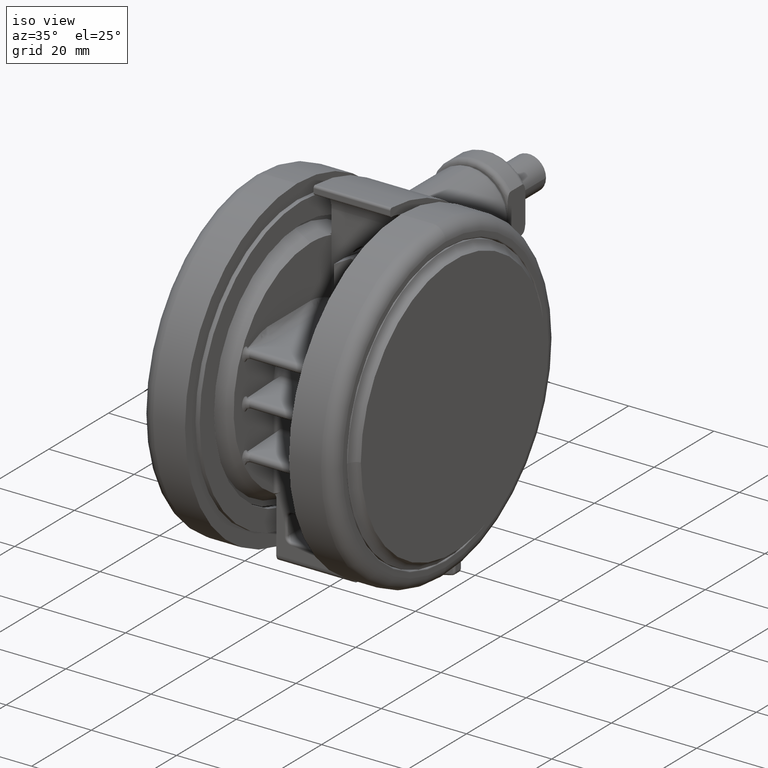
[diagram: clean part render]
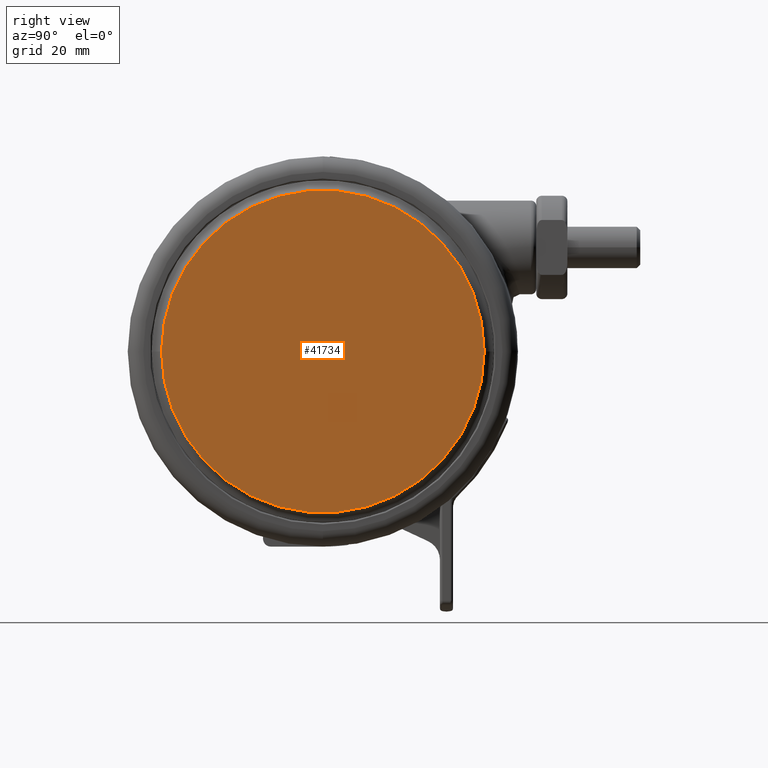
[diagram: tour spotlight — one face highlighted and labeled with its STEP entity id]
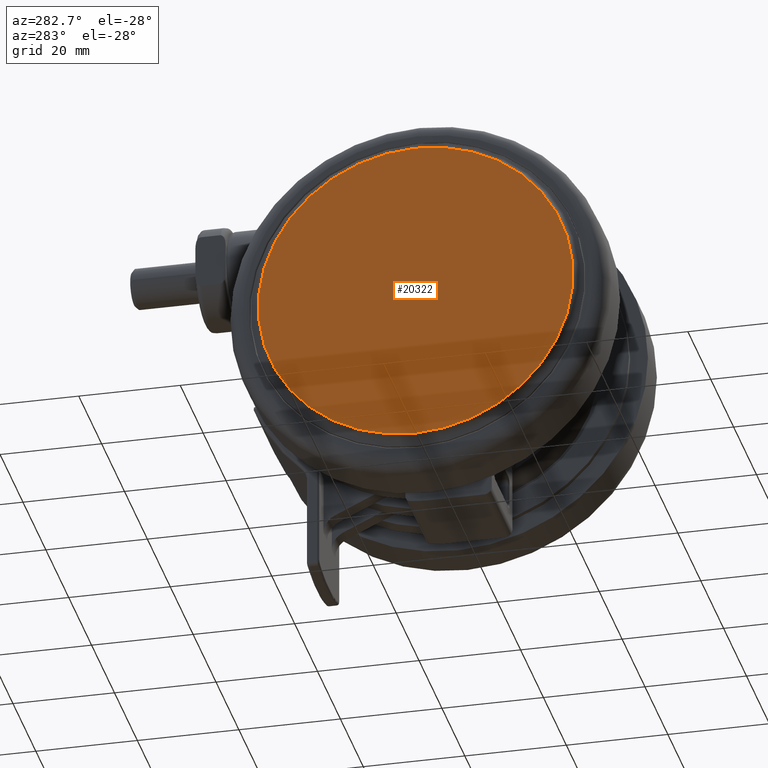
[diagram: tour spotlight — one face highlighted and labeled with its STEP entity id]
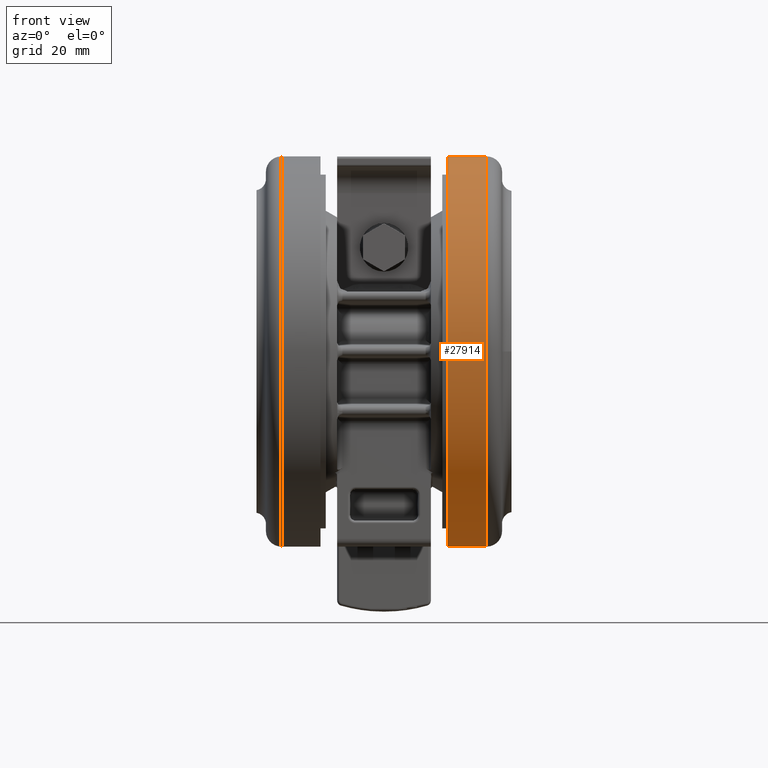
[diagram: tour spotlight — one face highlighted and labeled with its STEP entity id]
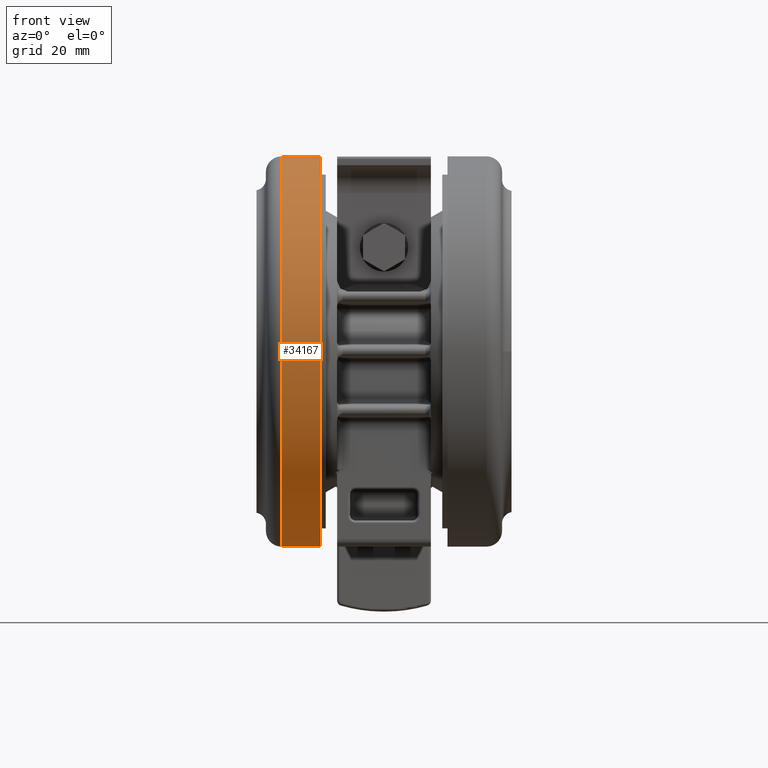
[diagram: tour spotlight — one face highlighted and labeled with its STEP entity id]
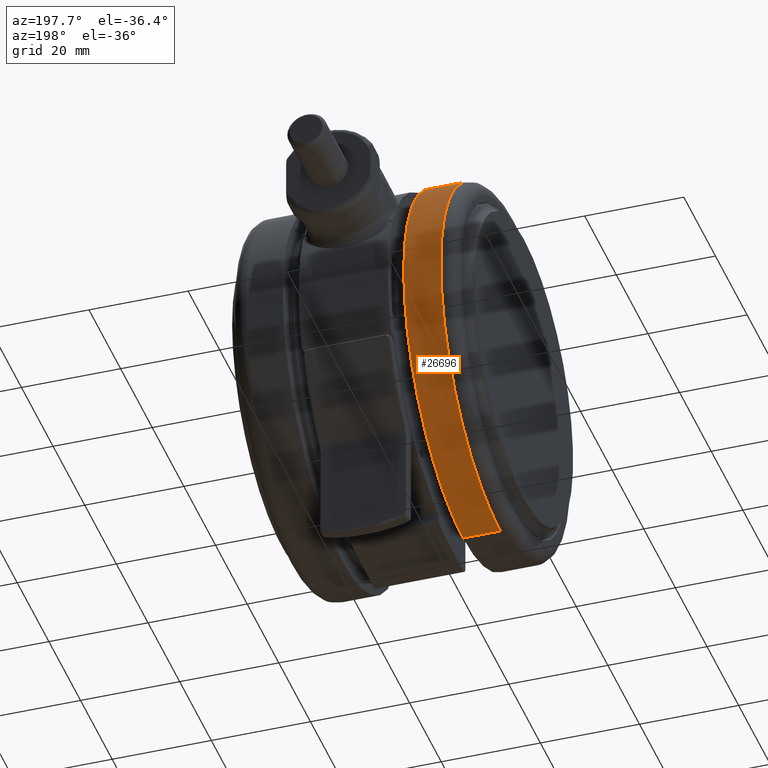
[diagram: tour spotlight — one face highlighted and labeled with its STEP entity id]
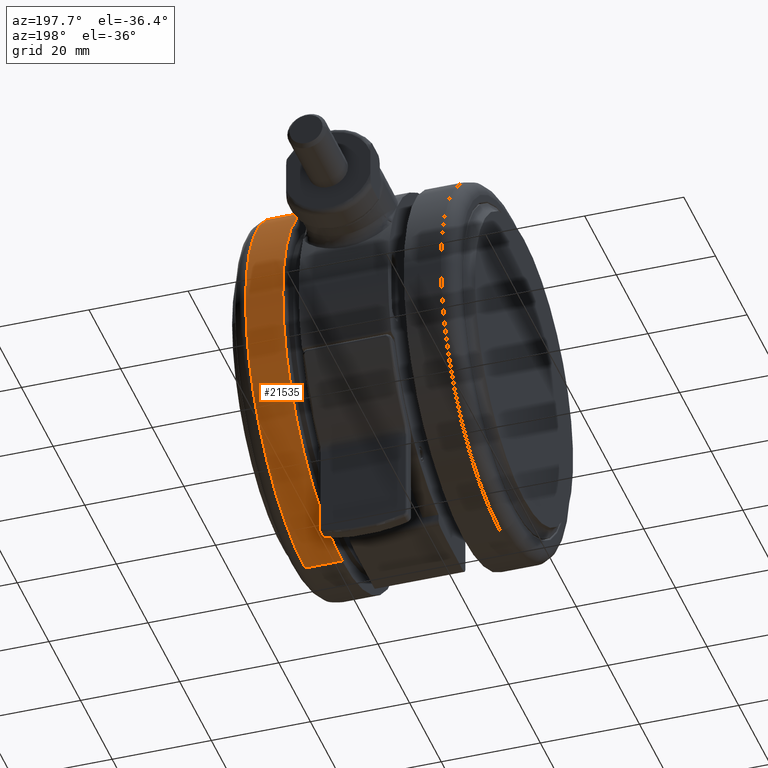
[diagram: tour spotlight — one face highlighted and labeled with its STEP entity id]
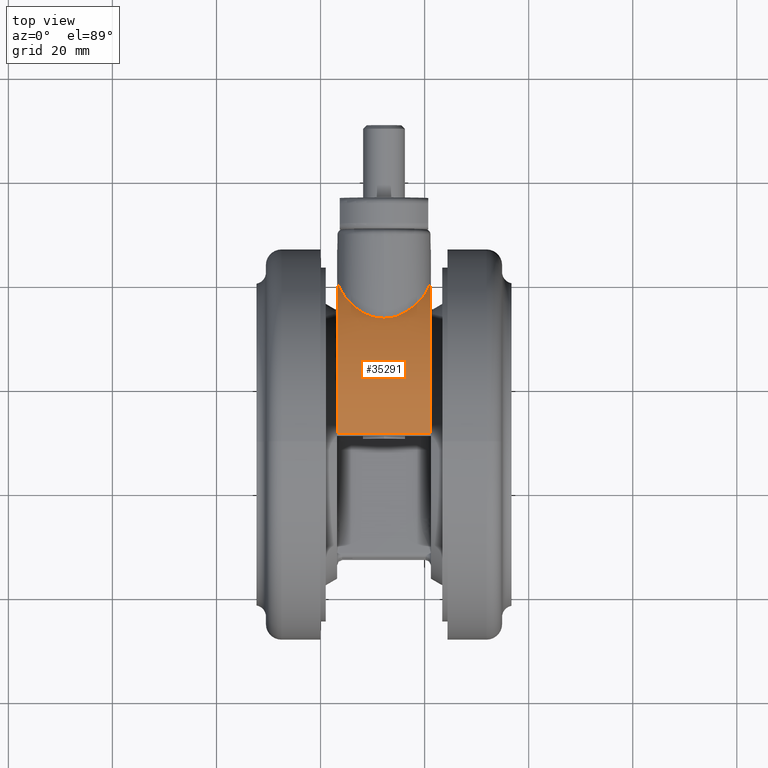
[diagram: tour spotlight — one face highlighted and labeled with its STEP entity id]
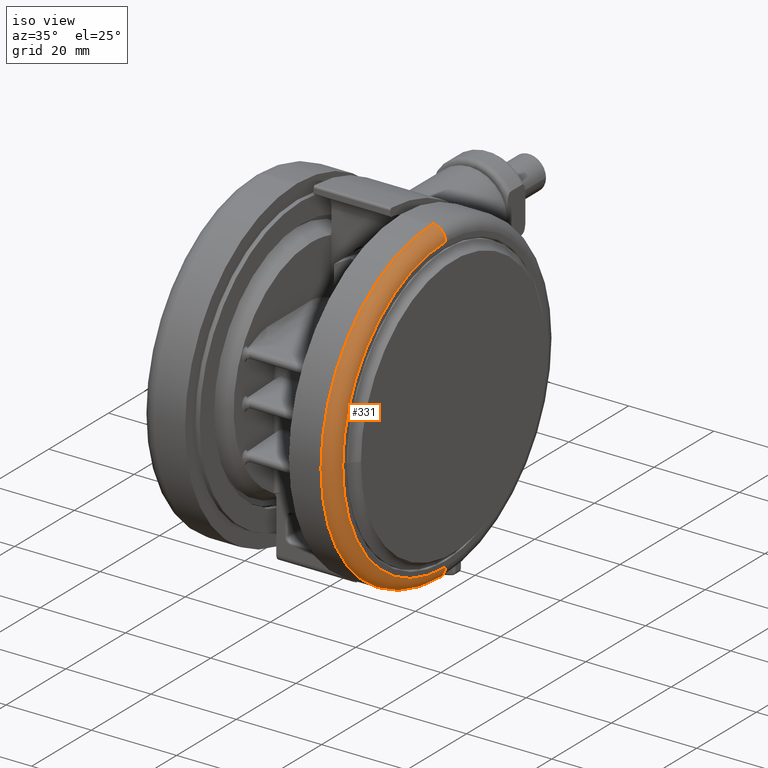
[diagram: tour spotlight — one face highlighted and labeled with its STEP entity id]
A machine part: a face-by-face anatomy tour. The part has 1455 B-rep faces; the first image is the clean iso view, then the 8 largest visible faces are spotlighted one at a time (largest first), each with its STEP entity span.

Face 1 — right view, entity #41734. In plain terms, the highlighted planar face has unit normal (-1, -0, 0).
Definition (entity closure, byte-faithful):
#443 = CIRCLE ( 'NONE', #13657, 31.00000000000000000 ) ;
#1880 = CARTESIAN_POINT ( 'NONE',  ( -31.00000000000000000, 3.907598370292685700E-015, 5.637851296924623100E-015 ) ) ;
#5478 = DIRECTION ( 'NONE',  ( 0.0000000000000000000, 0.0000000000000000000, 1.000000000000000000 ) ) ;
#6416 = ORIENTED_EDGE ( 'NONE', *, *, #33811, .T. ) ;
#10310 = DIRECTION ( 'NONE',  ( 0.0000000000000000000, 0.0000000000000000000, 1.000000000000000000 ) ) ;
#13657 = AXIS2_PLACEMENT_3D ( 'NONE', #27845, #5478, #31633 ) ;
#14387 = EDGE_LOOP ( 'NONE', ( #38325, #6416 ) ) ;
#20899 = VERTEX_POINT ( 'NONE', #1880 ) ;
#21429 = DIRECTION ( 'NONE',  ( 0.0000000000000000000, 0.0000000000000000000, -1.000000000000000000 ) ) ;
#23424 = CARTESIAN_POINT ( 'NONE',  ( 31.00000000000000000, 0.0000000000000000000, 5.637851296924623100E-015 ) ) ;
#24949 = AXIS2_PLACEMENT_3D ( 'NONE', #32729, #10310, #36462 ) ;
#27845 = CARTESIAN_POINT ( 'NONE',  ( 0.0000000000000000000, 0.0000000000000000000, 5.637851296924623100E-015 ) ) ;
#30120 = EDGE_CURVE ( 'NONE', #31338, #20899, #443, .T. ) ;
#31338 = VERTEX_POINT ( 'NONE', #23424 ) ;
#31633 = DIRECTION ( 'NONE',  ( 1.000000000000000000, 0.0000000000000000000, 0.0000000000000000000 ) ) ;
#32605 = CARTESIAN_POINT ( 'NONE',  ( 0.0000000000000000000, 31.00000000000000000, 5.637851296924623100E-015 ) ) ;
#32729 = CARTESIAN_POINT ( 'NONE',  ( 0.0000000000000000000, 0.0000000000000000000, 5.637851296924623100E-015 ) ) ;
#33811 = EDGE_CURVE ( 'NONE', #20899, #31338, #46395, .T. ) ;
#36462 = DIRECTION ( 'NONE',  ( 1.000000000000000000, 0.0000000000000000000, 0.0000000000000000000 ) ) ;
#38325 = ORIENTED_EDGE ( 'NONE', *, *, #30120, .T. ) ;
#41734 = ADVANCED_FACE ( 'NONE', ( #47586 ), #43875, .F. ) ;
#42545 = AXIS2_PLACEMENT_3D ( 'NONE', #32605, #21429, #47673 ) ;
#43875 = PLANE ( 'NONE',  #42545 ) ;
#46395 = CIRCLE ( 'NONE', #24949, 31.00000000000000000 ) ;
#47586 = FACE_OUTER_BOUND ( 'NONE', #14387, .T. ) ;
#47673 = DIRECTION ( 'NONE',  ( -1.000000000000000000, 0.0000000000000000000, 0.0000000000000000000 ) ) ;

Face 2 — auxiliary view, entity #20322. In plain terms, the highlighted planar face has unit normal (1, 0, 0).
Definition (entity closure, byte-faithful):
#981 = DIRECTION ( 'NONE',  ( 2.997602166487920300E-015, -1.000000000000000000, 0.0000000000000000000 ) ) ;
#1152 = AXIS2_PLACEMENT_3D ( 'NONE', #33473, #11040, #37219 ) ;
#6892 = DIRECTION ( 'NONE',  ( -2.997602166487920300E-015, 1.000000000000000000, 0.0000000000000000000 ) ) ;
#11040 = DIRECTION ( 'NONE',  ( 0.0000000000000000000, -0.0000000000000000000, -1.000000000000000000 ) ) ;
#11549 = CARTESIAN_POINT ( 'NONE',  ( 9.292566716112552700E-014, -31.00000000000000000, -48.99999999999993600 ) ) ;
#12885 = ORIENTED_EDGE ( 'NONE', *, *, #32925, .T. ) ;
#13366 = CIRCLE ( 'NONE', #44707, 31.00000000000000000 ) ;
#19747 = FACE_OUTER_BOUND ( 'NONE', #46699, .T. ) ;
#20322 = ADVANCED_FACE ( 'NONE', ( #19747 ), #25511, .F. ) ;
#23148 = VERTEX_POINT ( 'NONE', #11549 ) ;
#23329 = DIRECTION ( 'NONE',  ( 0.0000000000000000000, -0.0000000000000000000, -1.000000000000000000 ) ) ;
#23958 = VERTEX_POINT ( 'NONE', #32750 ) ;
#25511 = PLANE ( 'NONE',  #47842 ) ;
#29277 = DIRECTION ( 'NONE',  ( 0.0000000000000000000, 0.0000000000000000000, 1.000000000000000000 ) ) ;
#32750 = CARTESIAN_POINT ( 'NONE',  ( -9.955497481147852200E-014, 31.00000000000000000, -48.99999999999993600 ) ) ;
#32925 = EDGE_CURVE ( 'NONE', #23148, #23958, #46480, .T. ) ;
#33473 = CARTESIAN_POINT ( 'NONE',  ( 0.0000000000000000000, 0.0000000000000000000, -48.99999999999993600 ) ) ;
#37219 = DIRECTION ( 'NONE',  ( 2.997602166487920300E-015, -1.000000000000000000, 0.0000000000000000000 ) ) ;
#40416 = CARTESIAN_POINT ( 'NONE',  ( -31.00000000000000000, -9.292566716112552700E-014, -48.99999999999993600 ) ) ;
#40603 = EDGE_CURVE ( 'NONE', #23958, #23148, #13366, .T. ) ;
#44707 = AXIS2_PLACEMENT_3D ( 'NONE', #45784, #23329, #981 ) ;
#45207 = ORIENTED_EDGE ( 'NONE', *, *, #40603, .T. ) ;
#45784 = CARTESIAN_POINT ( 'NONE',  ( 0.0000000000000000000, 0.0000000000000000000, -48.99999999999993600 ) ) ;
#46480 = CIRCLE ( 'NONE', #1152, 31.00000000000000000 ) ;
#46699 = EDGE_LOOP ( 'NONE', ( #12885, #45207 ) ) ;
#47842 = AXIS2_PLACEMENT_3D ( 'NONE', #40416, #29277, #6892 ) ;

Face 3 — front view, entity #27914. In plain terms, the highlighted cylindrical surface (partial cylindrical patch) has radius 37.5 mm, axis along (1, 0, 0).
Definition (entity closure, byte-faithful):
#1625 = DIRECTION ( 'NONE',  ( -2.997602166487919900E-015, 1.000000000000000000, 0.0000000000000000000 ) ) ;
#2247 = EDGE_LOOP ( 'NONE', ( #13832, #48487, #9506, #27289 ) ) ;
#3685 = EDGE_CURVE ( 'NONE', #41558, #29465, #40829, .T. ) ;
#7039 = AXIS2_PLACEMENT_3D ( 'NONE', #40663, #14467, #25597 ) ;
#8784 = VECTOR ( 'NONE', #39295, 1000.000000000000000 ) ;
#9506 = ORIENTED_EDGE ( 'NONE', *, *, #15927, .T. ) ;
#10120 = CARTESIAN_POINT ( 'NONE',  ( -5.204170427930421300E-015, -3.469446951953614200E-014, -4.799999999999929700 ) ) ;
#13441 = CIRCLE ( 'NONE', #33992, 37.50000000000000000 ) ;
#13819 = DIRECTION ( 'NONE',  ( 2.997602166487919900E-015, -1.000000000000000000, 0.0000000000000000000 ) ) ;
#13832 = ORIENTED_EDGE ( 'NONE', *, *, #28263, .F. ) ;
#14414 = VECTOR ( 'NONE', #16293, 1000.000000000000000 ) ;
#14467 = DIRECTION ( 'NONE',  ( 0.0000000000000000000, 0.0000000000000000000, 1.000000000000000000 ) ) ;
#15927 = EDGE_CURVE ( 'NONE', #24319, #41558, #25548, .T. ) ;
#16293 = DIRECTION ( 'NONE',  ( 0.0000000000000000000, 0.0000000000000000000, 1.000000000000000000 ) ) ;
#18683 = LINE ( 'NONE', #28040, #8784 ) ;
#22810 = CYLINDRICAL_SURFACE ( 'NONE', #7039, 37.50000000000000000 ) ;
#23986 = DIRECTION ( 'NONE',  ( 0.0000000000000000000, 0.0000000000000000000, 1.000000000000000000 ) ) ;
#24319 = VERTEX_POINT ( 'NONE', #35781 ) ;
#25548 = LINE ( 'NONE', #42510, #14414 ) ;
#25597 = DIRECTION ( 'NONE',  ( -2.997602166487919900E-015, 1.000000000000000000, 0.0000000000000000000 ) ) ;
#27289 = ORIENTED_EDGE ( 'NONE', *, *, #3685, .T. ) ;
#27652 = EDGE_CURVE ( 'NONE', #46406, #24319, #13441, .T. ) ;
#27914 = ADVANCED_FACE ( 'NONE', ( #33972 ), #22810, .T. ) ;
#28040 = CARTESIAN_POINT ( 'NONE',  ( 1.026134853185640200E-013, -37.50000000000003600, 157.8894685039370500 ) ) ;
#28263 = EDGE_CURVE ( 'NONE', #46406, #29465, #18683, .T. ) ;
#29465 = VERTEX_POINT ( 'NONE', #37084 ) ;
#31487 = CARTESIAN_POINT ( 'NONE',  ( -1.222066771680300000E-013, 37.49999999999996400, -4.799999999999929700 ) ) ;
#33068 = AXIS2_PLACEMENT_3D ( 'NONE', #10120, #36245, #13819 ) ;
#33972 = FACE_OUTER_BOUND ( 'NONE', #2247, .T. ) ;
#33992 = AXIS2_PLACEMENT_3D ( 'NONE', #46457, #23986, #1625 ) ;
#35781 = CARTESIAN_POINT ( 'NONE',  ( -1.176142516712274200E-013, 37.49999999999996400, -12.29999999999993000 ) ) ;
#36245 = DIRECTION ( 'NONE',  ( -0.0000000000000000000, 0.0000000000000000000, -1.000000000000000000 ) ) ;
#37084 = CARTESIAN_POINT ( 'NONE',  ( 1.072059108153665800E-013, -37.50000000000003600, -4.799999999999929700 ) ) ;
#39295 = DIRECTION ( 'NONE',  ( 0.0000000000000000000, 0.0000000000000000000, 1.000000000000000000 ) ) ;
#40663 = CARTESIAN_POINT ( 'NONE',  ( -5.204170427930421300E-015, -3.469446951953614200E-014, 157.8894685039370500 ) ) ;
#40829 = CIRCLE ( 'NONE', #33068, 37.50000000000000000 ) ;
#41558 = VERTEX_POINT ( 'NONE', #31487 ) ;
#42510 = CARTESIAN_POINT ( 'NONE',  ( -1.176142516712274200E-013, 37.49999999999996400, 157.8894685039370500 ) ) ;
#43931 = CARTESIAN_POINT ( 'NONE',  ( 1.026134853185640200E-013, -37.50000000000003600, -12.29999999999993000 ) ) ;
#46406 = VERTEX_POINT ( 'NONE', #43931 ) ;
#46457 = CARTESIAN_POINT ( 'NONE',  ( -5.204170427930421300E-015, -3.469446951953614200E-014, -12.29999999999993000 ) ) ;
#48487 = ORIENTED_EDGE ( 'NONE', *, *, #27652, .T. ) ;

Face 4 — front view, entity #34167. In plain terms, the highlighted cylindrical surface (partial cylindrical patch) has radius 37.5 mm, axis along (-1, 0, 0).
Definition (entity closure, byte-faithful):
#14 = CARTESIAN_POINT ( 'NONE',  ( -1.176142516712274500E-013, 37.50000000000005000, -44.20000000000014500 ) ) ;
#3488 = CARTESIAN_POINT ( 'NONE',  ( 1.072059108153665800E-013, -37.49999999999995000, -36.70000000000014500 ) ) ;
#3540 = DIRECTION ( 'NONE',  ( 0.0000000000000000000, 0.0000000000000000000, 1.000000000000000000 ) ) ;
#7085 = VECTOR ( 'NONE', #7963, 1000.000000000000000 ) ;
#7239 = ORIENTED_EDGE ( 'NONE', *, *, #43147, .F. ) ;
#7963 = DIRECTION ( 'NONE',  ( 0.0000000000000000000, -0.0000000000000000000, -1.000000000000000000 ) ) ;
#9017 = ORIENTED_EDGE ( 'NONE', *, *, #39466, .T. ) ;
#9060 = CARTESIAN_POINT ( 'NONE',  ( -5.204170427930421300E-015, 4.857225732735059900E-014, -36.70000000000014500 ) ) ;
#9864 = CIRCLE ( 'NONE', #38824, 37.50000000000000000 ) ;
#10724 = VERTEX_POINT ( 'NONE', #27533 ) ;
#12314 = VECTOR ( 'NONE', #47012, 1000.000000000000000 ) ;
#12754 = DIRECTION ( 'NONE',  ( 2.997602166487919900E-015, -1.000000000000000000, 0.0000000000000000000 ) ) ;
#12808 = DIRECTION ( 'NONE',  ( 2.997602166487919900E-015, -1.000000000000000000, 0.0000000000000000000 ) ) ;
#12971 = DIRECTION ( 'NONE',  ( 0.0000000000000000000, -0.0000000000000000000, -1.000000000000000000 ) ) ;
#13055 = AXIS2_PLACEMENT_3D ( 'NONE', #39140, #12971, #12808 ) ;
#13439 = LINE ( 'NONE', #39441, #12314 ) ;
#14347 = EDGE_CURVE ( 'NONE', #10724, #39000, #9864, .T. ) ;
#14436 = CIRCLE ( 'NONE', #23723, 37.50000000000000000 ) ;
#17254 = CARTESIAN_POINT ( 'NONE',  ( -1.222066771680300000E-013, 37.50000000000005000, -36.70000000000014500 ) ) ;
#17417 = ORIENTED_EDGE ( 'NONE', *, *, #14347, .T. ) ;
#18194 = LINE ( 'NONE', #41451, #7085 ) ;
#21114 = CYLINDRICAL_SURFACE ( 'NONE', #13055, 37.50000000000000000 ) ;
#22155 = ORIENTED_EDGE ( 'NONE', *, *, #34667, .T. ) ;
#23476 = FACE_OUTER_BOUND ( 'NONE', #45007, .T. ) ;
#23723 = AXIS2_PLACEMENT_3D ( 'NONE', #9060, #35189, #12754 ) ;
#25894 = CARTESIAN_POINT ( 'NONE',  ( -5.204170427930421300E-015, 4.857225732735059900E-014, -44.20000000000014500 ) ) ;
#27533 = CARTESIAN_POINT ( 'NONE',  ( 1.026134853185640200E-013, -37.49999999999995000, -44.20000000000014500 ) ) ;
#27761 = VERTEX_POINT ( 'NONE', #17254 ) ;
#29664 = DIRECTION ( 'NONE',  ( -2.997602166487919900E-015, 1.000000000000000000, 0.0000000000000000000 ) ) ;
#34167 = ADVANCED_FACE ( 'NONE', ( #23476 ), #21114, .T. ) ;
#34667 = EDGE_CURVE ( 'NONE', #27761, #44864, #14436, .T. ) ;
#35189 = DIRECTION ( 'NONE',  ( 0.0000000000000000000, -0.0000000000000000000, -1.000000000000000000 ) ) ;
#38824 = AXIS2_PLACEMENT_3D ( 'NONE', #25894, #3540, #29664 ) ;
#39000 = VERTEX_POINT ( 'NONE', #14 ) ;
#39140 = CARTESIAN_POINT ( 'NONE',  ( -5.204170427930421300E-015, 4.857225732735059900E-014, -206.8894685039371400 ) ) ;
#39441 = CARTESIAN_POINT ( 'NONE',  ( -1.222066771680300000E-013, 37.50000000000005000, -206.8894685039371400 ) ) ;
#39466 = EDGE_CURVE ( 'NONE', #44864, #10724, #18194, .T. ) ;
#41451 = CARTESIAN_POINT ( 'NONE',  ( 1.072059108153665800E-013, -37.49999999999995000, -206.8894685039371400 ) ) ;
#43147 = EDGE_CURVE ( 'NONE', #27761, #39000, #13439, .T. ) ;
#44864 = VERTEX_POINT ( 'NONE', #3488 ) ;
#45007 = EDGE_LOOP ( 'NONE', ( #7239, #22155, #9017, #17417 ) ) ;
#47012 = DIRECTION ( 'NONE',  ( 0.0000000000000000000, -0.0000000000000000000, -1.000000000000000000 ) ) ;

Face 5 — auxiliary view, entity #26696. In plain terms, the highlighted cylindrical surface (partial cylindrical patch) has radius 37.5 mm, axis along (-1, 0, 0).
Definition (entity closure, byte-faithful):
#14 = CARTESIAN_POINT ( 'NONE',  ( -1.176142516712274500E-013, 37.50000000000005000, -44.20000000000014500 ) ) ;
#1430 = EDGE_CURVE ( 'NONE', #44864, #27761, #30544, .T. ) ;
#3488 = CARTESIAN_POINT ( 'NONE',  ( 1.072059108153665800E-013, -37.49999999999995000, -36.70000000000014500 ) ) ;
#6693 = AXIS2_PLACEMENT_3D ( 'NONE', #38326, #30837, #12168 ) ;
#7085 = VECTOR ( 'NONE', #7963, 1000.000000000000000 ) ;
#7963 = DIRECTION ( 'NONE',  ( 0.0000000000000000000, -0.0000000000000000000, -1.000000000000000000 ) ) ;
#10724 = VERTEX_POINT ( 'NONE', #27533 ) ;
#12168 = DIRECTION ( 'NONE',  ( 2.997602166487919900E-015, -1.000000000000000000, 0.0000000000000000000 ) ) ;
#12314 = VECTOR ( 'NONE', #47012, 1000.000000000000000 ) ;
#13230 = CARTESIAN_POINT ( 'NONE',  ( -5.204170427930421300E-015, 4.857225732735059900E-014, -44.20000000000014500 ) ) ;
#13439 = LINE ( 'NONE', #39441, #12314 ) ;
#15005 = ORIENTED_EDGE ( 'NONE', *, *, #1430, .T. ) ;
#16986 = DIRECTION ( 'NONE',  ( -2.997602166487919900E-015, 1.000000000000000000, 0.0000000000000000000 ) ) ;
#17223 = ORIENTED_EDGE ( 'NONE', *, *, #39466, .F. ) ;
#17254 = CARTESIAN_POINT ( 'NONE',  ( -1.222066771680300000E-013, 37.50000000000005000, -36.70000000000014500 ) ) ;
#18194 = LINE ( 'NONE', #41451, #7085 ) ;
#21133 = EDGE_LOOP ( 'NONE', ( #15005, #22629, #40803, #17223 ) ) ;
#21403 = DIRECTION ( 'NONE',  ( 0.0000000000000000000, -0.0000000000000000000, -1.000000000000000000 ) ) ;
#22629 = ORIENTED_EDGE ( 'NONE', *, *, #43147, .T. ) ;
#26696 = ADVANCED_FACE ( 'NONE', ( #26971 ), #45729, .T. ) ;
#26971 = FACE_OUTER_BOUND ( 'NONE', #21133, .T. ) ;
#27533 = CARTESIAN_POINT ( 'NONE',  ( 1.026134853185640200E-013, -37.49999999999995000, -44.20000000000014500 ) ) ;
#27761 = VERTEX_POINT ( 'NONE', #17254 ) ;
#30544 = CIRCLE ( 'NONE', #31441, 37.50000000000000000 ) ;
#30837 = DIRECTION ( 'NONE',  ( 0.0000000000000000000, -0.0000000000000000000, -1.000000000000000000 ) ) ;
#31441 = AXIS2_PLACEMENT_3D ( 'NONE', #43844, #21403, #47640 ) ;
#35697 = AXIS2_PLACEMENT_3D ( 'NONE', #13230, #39400, #16986 ) ;
#36261 = EDGE_CURVE ( 'NONE', #39000, #10724, #39451, .T. ) ;
#38326 = CARTESIAN_POINT ( 'NONE',  ( -5.204170427930421300E-015, 4.857225732735059900E-014, -206.8894685039371400 ) ) ;
#39000 = VERTEX_POINT ( 'NONE', #14 ) ;
#39400 = DIRECTION ( 'NONE',  ( 0.0000000000000000000, 0.0000000000000000000, 1.000000000000000000 ) ) ;
#39441 = CARTESIAN_POINT ( 'NONE',  ( -1.222066771680300000E-013, 37.50000000000005000, -206.8894685039371400 ) ) ;
#39451 = CIRCLE ( 'NONE', #35697, 37.50000000000000000 ) ;
#39466 = EDGE_CURVE ( 'NONE', #44864, #10724, #18194, .T. ) ;
#40803 = ORIENTED_EDGE ( 'NONE', *, *, #36261, .T. ) ;
#41451 = CARTESIAN_POINT ( 'NONE',  ( 1.072059108153665800E-013, -37.49999999999995000, -206.8894685039371400 ) ) ;
#43147 = EDGE_CURVE ( 'NONE', #27761, #39000, #13439, .T. ) ;
#43844 = CARTESIAN_POINT ( 'NONE',  ( -5.204170427930421300E-015, 4.857225732735059900E-014, -36.70000000000014500 ) ) ;
#44864 = VERTEX_POINT ( 'NONE', #3488 ) ;
#45729 = CYLINDRICAL_SURFACE ( 'NONE', #6693, 37.50000000000000000 ) ;
#47012 = DIRECTION ( 'NONE',  ( 0.0000000000000000000, -0.0000000000000000000, -1.000000000000000000 ) ) ;
#47640 = DIRECTION ( 'NONE',  ( 2.997602166487919900E-015, -1.000000000000000000, 0.0000000000000000000 ) ) ;

Face 6 — auxiliary view, entity #21535. In plain terms, the highlighted cylindrical surface (partial cylindrical patch) has radius 37.5 mm, axis along (1, 0, 0).
Definition (entity closure, byte-faithful):
#509 = EDGE_CURVE ( 'NONE', #29465, #41558, #37042, .T. ) ;
#562 = CIRCLE ( 'NONE', #5277, 37.50000000000000000 ) ;
#5277 = AXIS2_PLACEMENT_3D ( 'NONE', #31579, #9185, #35317 ) ;
#6530 = CARTESIAN_POINT ( 'NONE',  ( -5.204170427930421300E-015, -3.469446951953614200E-014, 157.8894685039370500 ) ) ;
#7767 = ORIENTED_EDGE ( 'NONE', *, *, #15927, .F. ) ;
#8784 = VECTOR ( 'NONE', #39295, 1000.000000000000000 ) ;
#9185 = DIRECTION ( 'NONE',  ( 0.0000000000000000000, 0.0000000000000000000, 1.000000000000000000 ) ) ;
#10277 = DIRECTION ( 'NONE',  ( -2.997602166487919900E-015, 1.000000000000000000, 0.0000000000000000000 ) ) ;
#11908 = AXIS2_PLACEMENT_3D ( 'NONE', #17631, #43823, #21377 ) ;
#12514 = EDGE_CURVE ( 'NONE', #24319, #46406, #562, .T. ) ;
#14414 = VECTOR ( 'NONE', #16293, 1000.000000000000000 ) ;
#14874 = ORIENTED_EDGE ( 'NONE', *, *, #509, .T. ) ;
#15927 = EDGE_CURVE ( 'NONE', #24319, #41558, #25548, .T. ) ;
#16293 = DIRECTION ( 'NONE',  ( 0.0000000000000000000, 0.0000000000000000000, 1.000000000000000000 ) ) ;
#17090 = ORIENTED_EDGE ( 'NONE', *, *, #28263, .T. ) ;
#17631 = CARTESIAN_POINT ( 'NONE',  ( -5.204170427930421300E-015, -3.469446951953614200E-014, -4.799999999999929700 ) ) ;
#18683 = LINE ( 'NONE', #28040, #8784 ) ;
#20962 = CYLINDRICAL_SURFACE ( 'NONE', #48199, 37.50000000000000000 ) ;
#21377 = DIRECTION ( 'NONE',  ( 2.997602166487919900E-015, -1.000000000000000000, 0.0000000000000000000 ) ) ;
#21535 = ADVANCED_FACE ( 'NONE', ( #32147 ), #20962, .T. ) ;
#22378 = ORIENTED_EDGE ( 'NONE', *, *, #12514, .T. ) ;
#24319 = VERTEX_POINT ( 'NONE', #35781 ) ;
#25548 = LINE ( 'NONE', #42510, #14414 ) ;
#28040 = CARTESIAN_POINT ( 'NONE',  ( 1.026134853185640200E-013, -37.50000000000003600, 157.8894685039370500 ) ) ;
#28263 = EDGE_CURVE ( 'NONE', #46406, #29465, #18683, .T. ) ;
#29079 = EDGE_LOOP ( 'NONE', ( #22378, #17090, #14874, #7767 ) ) ;
#29465 = VERTEX_POINT ( 'NONE', #37084 ) ;
#31487 = CARTESIAN_POINT ( 'NONE',  ( -1.222066771680300000E-013, 37.49999999999996400, -4.799999999999929700 ) ) ;
#31579 = CARTESIAN_POINT ( 'NONE',  ( -5.204170427930421300E-015, -3.469446951953614200E-014, -12.29999999999993000 ) ) ;
#32147 = FACE_OUTER_BOUND ( 'NONE', #29079, .T. ) ;
#35317 = DIRECTION ( 'NONE',  ( -2.997602166487919900E-015, 1.000000000000000000, 0.0000000000000000000 ) ) ;
#35781 = CARTESIAN_POINT ( 'NONE',  ( -1.176142516712274200E-013, 37.49999999999996400, -12.29999999999993000 ) ) ;
#37042 = CIRCLE ( 'NONE', #11908, 37.50000000000000000 ) ;
#37084 = CARTESIAN_POINT ( 'NONE',  ( 1.072059108153665800E-013, -37.50000000000003600, -4.799999999999929700 ) ) ;
#39295 = DIRECTION ( 'NONE',  ( 0.0000000000000000000, 0.0000000000000000000, 1.000000000000000000 ) ) ;
#40193 = DIRECTION ( 'NONE',  ( 0.0000000000000000000, 0.0000000000000000000, 1.000000000000000000 ) ) ;
#41558 = VERTEX_POINT ( 'NONE', #31487 ) ;
#42510 = CARTESIAN_POINT ( 'NONE',  ( -1.176142516712274200E-013, 37.49999999999996400, 157.8894685039370500 ) ) ;
#43823 = DIRECTION ( 'NONE',  ( -0.0000000000000000000, 0.0000000000000000000, -1.000000000000000000 ) ) ;
#43931 = CARTESIAN_POINT ( 'NONE',  ( 1.026134853185640200E-013, -37.50000000000003600, -12.29999999999993000 ) ) ;
#46406 = VERTEX_POINT ( 'NONE', #43931 ) ;
#48199 = AXIS2_PLACEMENT_3D ( 'NONE', #6530, #40193, #10277 ) ;

Face 7 — top view, entity #35291. In plain terms, the highlighted cylindrical surface (partial cylindrical patch) has radius 37.5 mm, axis along (-1, 0, 0).
Definition (entity closure, byte-faithful):
#1 = CARTESIAN_POINT ( 'NONE',  ( -31.72144385112048700, -20.00000000000519400, -33.49999999999994300 ) ) ;
#72 = CARTESIAN_POINT ( 'NONE',  ( -24.49629575243165600, -28.39379888046454100, -27.76296115049373400 ) ) ;
#237 = CARTESIAN_POINT ( 'NONE',  ( -30.19984316497147200, -22.24118781089961100, -33.23430802410702300 ) ) ;
#1242 = CARTESIAN_POINT ( 'NONE',  ( -26.16574146309534800, -26.86740031632782800, -18.65414359588525500 ) ) ;
#1404 = CARTESIAN_POINT ( 'NONE',  ( -23.77498685593116400, -29.00000000000517300, -24.49999999999997900 ) ) ;
#1482 = ORIENTED_EDGE ( 'NONE', *, *, #38016, .T. ) ;
#3262 = DIRECTION ( 'NONE',  ( 2.997602166487919900E-015, -1.000000000000000000, 0.0000000000000000000 ) ) ;
#3820 = CARTESIAN_POINT ( 'NONE',  ( -24.93385008721722300, -28.01058705579846700, -28.61417754313480100 ) ) ;
#3977 = CARTESIAN_POINT ( 'NONE',  ( -31.35468604444054100, -20.58170435858300400, -33.49999999999998600 ) ) ;
#4854 = CARTESIAN_POINT ( 'NONE',  ( -31.72144385112048700, -20.00000000000519400, -15.49999999999994700 ) ) ;
#5008 = CARTESIAN_POINT ( 'NONE',  ( -25.43912302963778400, -27.55274609399373600, -19.59633223457591800 ) ) ;
#6327 = CARTESIAN_POINT ( 'NONE',  ( 0.0000000000000000000, 0.0000000000000000000, -33.49999999999994300 ) ) ;
#6935 = B_SPLINE_CURVE_WITH_KNOTS ( 'NONE', 3,
 ( #4854, #8599, #34751, #12332, #38467, #16060, #42265, #19841, #46039, #23595, #1242, #27366, #5008, #31165, #8762, #34903, #12493, #38651, #16219, #42432, #20012, #46209, #23740, #1404 ),
 .UNSPECIFIED., .F., .F.,
 ( 4, 2, 2, 2, 2, 2, 2, 2, 2, 2, 2, 4 ),
 ( 0.04604928421624549700, 0.04809021191895059700, 0.05013113962165570400, 0.05217206732436080500, 0.05421299502706591200, 0.05625392272977101900, 0.05727438658112356900, 0.05829485043247612700, 0.05931531428382868400, 0.06033577813518123400, 0.06135624198653379100, 0.06237670583788634800 ),
 .UNSPECIFIED. ) ;
#7126 = DIRECTION ( 'NONE',  ( -0.0000000000000000000, 0.0000000000000000000, 1.000000000000000000 ) ) ;
#7571 = CARTESIAN_POINT ( 'NONE',  ( -25.43501765697446300, -27.55652986852765500, -29.39779525486317300 ) ) ;
#8594 = CIRCLE ( 'NONE', #26895, 37.50000000000000000 ) ;
#8599 = CARTESIAN_POINT ( 'NONE',  ( -31.35688465722300600, -20.57821719998654700, -15.49999999999998400 ) ) ;
#8762 = CARTESIAN_POINT ( 'NONE',  ( -24.93897893322785100, -28.00601721492014200, -20.37705122227204400 ) ) ;
#10098 = DIRECTION ( 'NONE',  ( 2.997602166487919900E-015, -1.000000000000000000, 0.0000000000000000000 ) ) ;
#11157 = CARTESIAN_POINT ( 'NONE',  ( -1.520270270270157600, -37.46917103840611000, -15.49999999999994700 ) ) ;
#11302 = CARTESIAN_POINT ( 'NONE',  ( -26.15738813550503000, -26.87549940287174600, -30.33620474371713600 ) ) ;
#11303 = VERTEX_POINT ( 'NONE', #11157 ) ;
#12225 = VERTEX_POINT ( 'NONE', #14553 ) ;
#12282 = EDGE_CURVE ( 'NONE', #24053, #12809, #25329, .T. ) ;
#12332 = CARTESIAN_POINT ( 'NONE',  ( -30.19048296544613300, -22.25415600081634100, -15.76856568133831400 ) ) ;
#12493 = CARTESIAN_POINT ( 'NONE',  ( -24.50175122457604400, -28.38909939519843900, -21.22481296255700700 ) ) ;
#12809 = VERTEX_POINT ( 'NONE', #1 ) ;
#13741 = EDGE_LOOP ( 'NONE', ( #24971, #1482, #32959, #41113, #28915 ) ) ;
#14264 = AXIS2_PLACEMENT_3D ( 'NONE', #6327, #32509, #10098 ) ;
#14553 = CARTESIAN_POINT ( 'NONE',  ( -31.72144385112048700, -20.00000000000519400, -15.49999999999994700 ) ) ;
#14890 = CARTESIAN_POINT ( 'NONE',  ( -23.87268563614882300, -28.92056231918271100, -25.86635686856776000 ) ) ;
#15041 = CARTESIAN_POINT ( 'NONE',  ( -27.34456565225937700, -25.66819990053232200, -31.51332582843134500 ) ) ;
#15687 = CIRCLE ( 'NONE', #14264, 37.50000000000000000 ) ;
#16060 = CARTESIAN_POINT ( 'NONE',  ( -28.97839240994041500, -23.81024205583271000, -16.32788881423418600 ) ) ;
#16127 = CYLINDRICAL_SURFACE ( 'NONE', #39405, 37.50000000000000000 ) ;
#16219 = CARTESIAN_POINT ( 'NONE',  ( -24.14374008542844400, -28.69395994590112100, -22.14954226701362900 ) ) ;
#17301 = FACE_OUTER_BOUND ( 'NONE', #13741, .T. ) ;
#18645 = CARTESIAN_POINT ( 'NONE',  ( -23.77498685593116400, -29.00000000000517300, -24.49999999999997900 ) ) ;
#18818 = CARTESIAN_POINT ( 'NONE',  ( -28.57072128651583400, -24.29706794076789200, -32.42689665600806100 ) ) ;
#19841 = CARTESIAN_POINT ( 'NONE',  ( -27.74578462794880500, -25.23509289590245100, -17.15845812362813700 ) ) ;
#20012 = CARTESIAN_POINT ( 'NONE',  ( -23.89536872902867500, -28.90095464020175000, -23.12522792606382200 ) ) ;
#21997 = DIRECTION ( 'NONE',  ( 2.997602166487919900E-015, -1.000000000000000000, 0.0000000000000000000 ) ) ;
#22242 = CARTESIAN_POINT ( 'NONE',  ( -23.77498685593117100, -29.00000000000517300, -25.19589137295714200 ) ) ;
#22413 = CARTESIAN_POINT ( 'NONE',  ( -24.24970388180744900, -28.60468811400543000, -27.15746450136500200 ) ) ;
#22568 = CARTESIAN_POINT ( 'NONE',  ( -29.80076336563379200, -22.77274678671816200, -33.08016418966141700 ) ) ;
#23595 = CARTESIAN_POINT ( 'NONE',  ( -26.54941240150530000, -26.48963220947726800, -18.23976476340305200 ) ) ;
#23740 = CARTESIAN_POINT ( 'NONE',  ( -23.77498685593116800, -29.00000000000518300, -24.15297936187199600 ) ) ;
#24053 = VERTEX_POINT ( 'NONE', #37624 ) ;
#24971 = ORIENTED_EDGE ( 'NONE', *, *, #41109, .F. ) ;
#25329 = B_SPLINE_CURVE_WITH_KNOTS ( 'NONE', 3,
 ( #18645, #22242, #14890, #44841, #22413, #72, #26153, #3820, #29966, #7571, #33725, #11302, #37469, #15041, #41229, #18818, #45013, #22568, #237, #26323, #3977, #30122 ),
 .UNSPECIFIED., .F., .F.,
 ( 4, 2, 2, 2, 2, 2, 2, 2, 2, 2, 4 ),
 ( 0.0000000000000000000, 0.002046368176837288100, 0.003069552265255935800, 0.004092736353674584000, 0.005115920442093231300, 0.006139104530511879500, 0.008185472707349175000, 0.01023184088418647000, 0.01227820906102376600, 0.01432457723786106100, 0.01637094541469835700 ),
 .UNSPECIFIED. ) ;
#25605 = DIRECTION ( 'NONE',  ( 0.0000000000000000000, -0.0000000000000000000, -1.000000000000000000 ) ) ;
#26153 = CARTESIAN_POINT ( 'NONE',  ( -24.63416093652268700, -28.27451117766293700, -28.05364975844474900 ) ) ;
#26323 = CARTESIAN_POINT ( 'NONE',  ( -30.97680016170051700, -21.14565709952410400, -33.44418969353871100 ) ) ;
#26895 = AXIS2_PLACEMENT_3D ( 'NONE', #48070, #25605, #3262 ) ;
#27366 = CARTESIAN_POINT ( 'NONE',  ( -25.61796859146751300, -27.38673021308722600, -19.35024050953052600 ) ) ;
#28915 = ORIENTED_EDGE ( 'NONE', *, *, #12282, .T. ) ;
#29508 = CARTESIAN_POINT ( 'NONE',  ( -1.520270270270157600, -37.46917103840615900, -656.8073252207109400 ) ) ;
#29552 = DIRECTION ( 'NONE',  ( 0.0000000000000000000, -0.0000000000000000000, -1.000000000000000000 ) ) ;
#29966 = CARTESIAN_POINT ( 'NONE',  ( -25.09650932623477700, -27.86516967907911600, -28.88504822457046100 ) ) ;
#30122 = CARTESIAN_POINT ( 'NONE',  ( -31.72144385112048700, -20.00000000000519400, -33.49999999999994300 ) ) ;
#31165 = CARTESIAN_POINT ( 'NONE',  ( -25.09957171492884200, -27.86241729578174600, -20.10997433025818600 ) ) ;
#31336 = EDGE_CURVE ( 'NONE', #12225, #24053, #6935, .T. ) ;
#32418 = VERTEX_POINT ( 'NONE', #34019 ) ;
#32509 = DIRECTION ( 'NONE',  ( 0.0000000000000000000, -0.0000000000000000000, -1.000000000000000000 ) ) ;
#32959 = ORIENTED_EDGE ( 'NONE', *, *, #35241, .T. ) ;
#33725 = CARTESIAN_POINT ( 'NONE',  ( -25.61143402058552700, -27.39283305840230700, -29.64095942728801000 ) ) ;
#34019 = CARTESIAN_POINT ( 'NONE',  ( -1.520270270270157600, -37.46917103840611000, -33.49999999999994300 ) ) ;
#34751 = CARTESIAN_POINT ( 'NONE',  ( -30.97771995613139900, -21.14458766008605300, -15.55522031431256600 ) ) ;
#34903 = CARTESIAN_POINT ( 'NONE',  ( -24.64008248997930700, -28.26934745199116300, -20.93448306866790900 ) ) ;
#35241 = EDGE_CURVE ( 'NONE', #11303, #12225, #8594, .T. ) ;
#35291 = ADVANCED_FACE ( 'NONE', ( #17301 ), #16127, .T. ) ;
#37065 = LINE ( 'NONE', #29508, #48218 ) ;
#37469 = CARTESIAN_POINT ( 'NONE',  ( -26.54334829511083500, -26.49589436363392300, -30.75448524697714700 ) ) ;
#37624 = CARTESIAN_POINT ( 'NONE',  ( -23.77498685593116400, -29.00000000000517300, -24.49999999999997900 ) ) ;
#38016 = EDGE_CURVE ( 'NONE', #32418, #11303, #37065, .T. ) ;
#38467 = CARTESIAN_POINT ( 'NONE',  ( -29.78835534453919500, -22.78878538424767400, -15.92538503271714500 ) ) ;
#38651 = CARTESIAN_POINT ( 'NONE',  ( -24.25306027693822100, -28.60185037274112600, -21.83316499240594400 ) ) ;
#39405 = AXIS2_PLACEMENT_3D ( 'NONE', #48239, #29552, #21997 ) ;
#41109 = EDGE_CURVE ( 'NONE', #32418, #12809, #15687, .T. ) ;
#41113 = ORIENTED_EDGE ( 'NONE', *, *, #31336, .T. ) ;
#41229 = CARTESIAN_POINT ( 'NONE',  ( -27.75274312952664600, -25.22734377885575100, -31.84679253145716200 ) ) ;
#42265 = CARTESIAN_POINT ( 'NONE',  ( -28.56908258596522300, -24.29909459798132300, -16.57395304146838900 ) ) ;
#42432 = CARTESIAN_POINT ( 'NONE',  ( -23.96531813428851300, -28.84314562269595000, -22.79460661685243700 ) ) ;
#44841 = CARTESIAN_POINT ( 'NONE',  ( -24.14023075684809800, -28.69691220482011900, -26.83977753160290900 ) ) ;
#45013 = CARTESIAN_POINT ( 'NONE',  ( -28.98298255318832500, -23.80483597313923700, -32.67499635977414800 ) ) ;
#46039 = CARTESIAN_POINT ( 'NONE',  ( -27.33865165889751500, -25.67430698056014600, -17.49228198896582500 ) ) ;
#46209 = CARTESIAN_POINT ( 'NONE',  ( -23.79989951083487700, -28.97962403285112000, -23.80477054805822900 ) ) ;
#48070 = CARTESIAN_POINT ( 'NONE',  ( 0.0000000000000000000, 0.0000000000000000000, -15.49999999999994700 ) ) ;
#48218 = VECTOR ( 'NONE', #7126, 1000.000000000000000 ) ;
#48239 = CARTESIAN_POINT ( 'NONE',  ( 0.0000000000000000000, 0.0000000000000000000, -656.8073252207109400 ) ) ;

Face 8 — iso view, entity #331. In plain terms, the highlighted toroidal blend (fillet) surface has major radius 34.5 mm and minor (blend) radius 3 mm.
Definition (entity closure, byte-faithful):
#331 = ADVANCED_FACE ( 'NONE', ( #35305 ), #25334, .T. ) ;
#1191 = AXIS2_PLACEMENT_3D ( 'NONE', #37684, #15254, #41428 ) ;
#1772 = DIRECTION ( 'NONE',  ( -2.997602166487918300E-015, 1.000000000000000000, 0.0000000000000000000 ) ) ;
#2773 = AXIS2_PLACEMENT_3D ( 'NONE', #40278, #17867, #44057 ) ;
#2941 = VERTEX_POINT ( 'NONE', #6042 ) ;
#3685 = EDGE_CURVE ( 'NONE', #41558, #29465, #40829, .T. ) ;
#6042 = CARTESIAN_POINT ( 'NONE',  ( -1.175265768984260500E-013, 34.49999999999997200, -1.799999999999928300 ) ) ;
#6289 = EDGE_CURVE ( 'NONE', #33722, #2941, #19731, .T. ) ;
#7573 = CIRCLE ( 'NONE', #21148, 3.000000000000002700 ) ;
#10120 = CARTESIAN_POINT ( 'NONE',  ( -5.204170427930421300E-015, -3.469446951953614200E-014, -4.799999999999929700 ) ) ;
#13819 = DIRECTION ( 'NONE',  ( 2.997602166487919900E-015, -1.000000000000000000, 0.0000000000000000000 ) ) ;
#14236 = ORIENTED_EDGE ( 'NONE', *, *, #6289, .F. ) ;
#15254 = DIRECTION ( 'NONE',  ( -1.000000000000000000, -3.120066846402655400E-015, 0.0000000000000000000 ) ) ;
#16500 = DIRECTION ( 'NONE',  ( -0.0000000000000000000, 0.0000000000000000000, -1.000000000000000000 ) ) ;
#17867 = DIRECTION ( 'NONE',  ( 0.0000000000000000000, -0.0000000000000000000, 1.000000000000000000 ) ) ;
#19160 = ORIENTED_EDGE ( 'NONE', *, *, #3685, .F. ) ;
#19731 = CIRCLE ( 'NONE', #2773, 34.50000000000000000 ) ;
#20133 = CARTESIAN_POINT ( 'NONE',  ( -5.204170427930421300E-015, -3.469446951953614200E-014, -4.799999999999929700 ) ) ;
#21148 = AXIS2_PLACEMENT_3D ( 'NONE', #46593, #24124, #1772 ) ;
#24028 = DIRECTION ( 'NONE',  ( 2.997602166487920300E-015, -1.000000000000000000, 0.0000000000000000000 ) ) ;
#24124 = DIRECTION ( 'NONE',  ( 1.000000000000000000, 2.997602166487920300E-015, 0.0000000000000000000 ) ) ;
#24959 = CIRCLE ( 'NONE', #1191, 3.000000000000002700 ) ;
#25334 = TOROIDAL_SURFACE ( 'NONE', #37902, 34.50000000000000000, 3.000000000000000000 ) ;
#25342 = ORIENTED_EDGE ( 'NONE', *, *, #40743, .T. ) ;
#29465 = VERTEX_POINT ( 'NONE', #37084 ) ;
#30035 = EDGE_CURVE ( 'NONE', #2941, #41558, #24959, .T. ) ;
#31487 = CARTESIAN_POINT ( 'NONE',  ( -1.222066771680300000E-013, 37.49999999999996400, -4.799999999999929700 ) ) ;
#33068 = AXIS2_PLACEMENT_3D ( 'NONE', #10120, #36245, #13819 ) ;
#33722 = VERTEX_POINT ( 'NONE', #39399 ) ;
#35094 = ORIENTED_EDGE ( 'NONE', *, *, #30035, .F. ) ;
#35305 = FACE_OUTER_BOUND ( 'NONE', #41089, .T. ) ;
#36245 = DIRECTION ( 'NONE',  ( -0.0000000000000000000, 0.0000000000000000000, -1.000000000000000000 ) ) ;
#37084 = CARTESIAN_POINT ( 'NONE',  ( 1.072059108153665800E-013, -37.50000000000003600, -4.799999999999929700 ) ) ;
#37684 = CARTESIAN_POINT ( 'NONE',  ( -1.128464766288220400E-013, 34.49999999999997200, -4.799999999999929700 ) ) ;
#37902 = AXIS2_PLACEMENT_3D ( 'NONE', #20133, #16500, #24028 ) ;
#39399 = CARTESIAN_POINT ( 'NONE',  ( 9.821310431590283500E-014, -34.50000000000003600, -1.799999999999928300 ) ) ;
#40278 = CARTESIAN_POINT ( 'NONE',  ( -5.204170427930421300E-015, -3.469446951953614200E-014, -1.799999999999928300 ) ) ;
#40743 = EDGE_CURVE ( 'NONE', #33722, #29465, #7573, .T. ) ;
#40829 = CIRCLE ( 'NONE', #33068, 37.50000000000000000 ) ;
#41089 = EDGE_LOOP ( 'NONE', ( #35094, #14236, #25342, #19160 ) ) ;
#41428 = DIRECTION ( 'NONE',  ( 3.120066846402653500E-015, -1.000000000000000000, 0.0000000000000000000 ) ) ;
#41558 = VERTEX_POINT ( 'NONE', #31487 ) ;
#44057 = DIRECTION ( 'NONE',  ( 2.997602166487920300E-015, -1.000000000000000000, 0.0000000000000000000 ) ) ;
#46593 = CARTESIAN_POINT ( 'NONE',  ( 9.821310431590283500E-014, -34.50000000000003600, -4.799999999999929700 ) ) ;